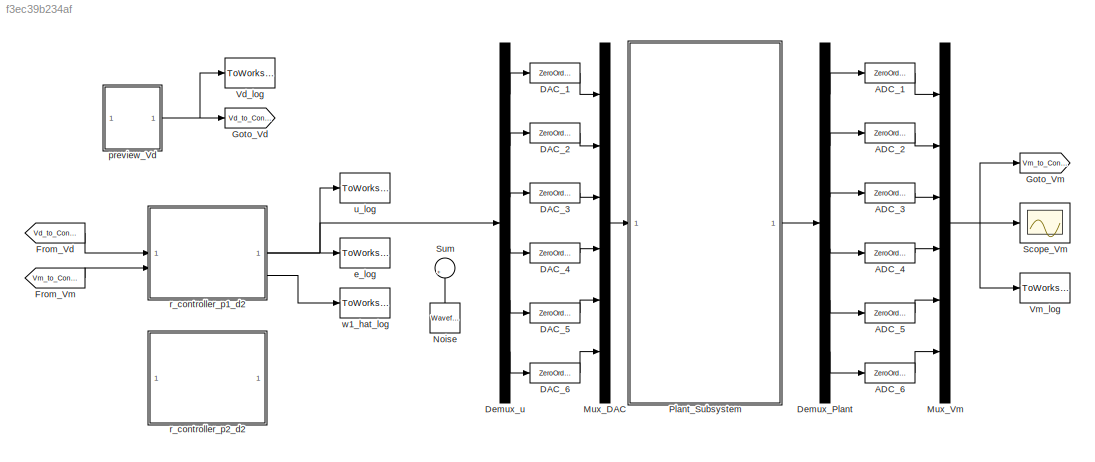
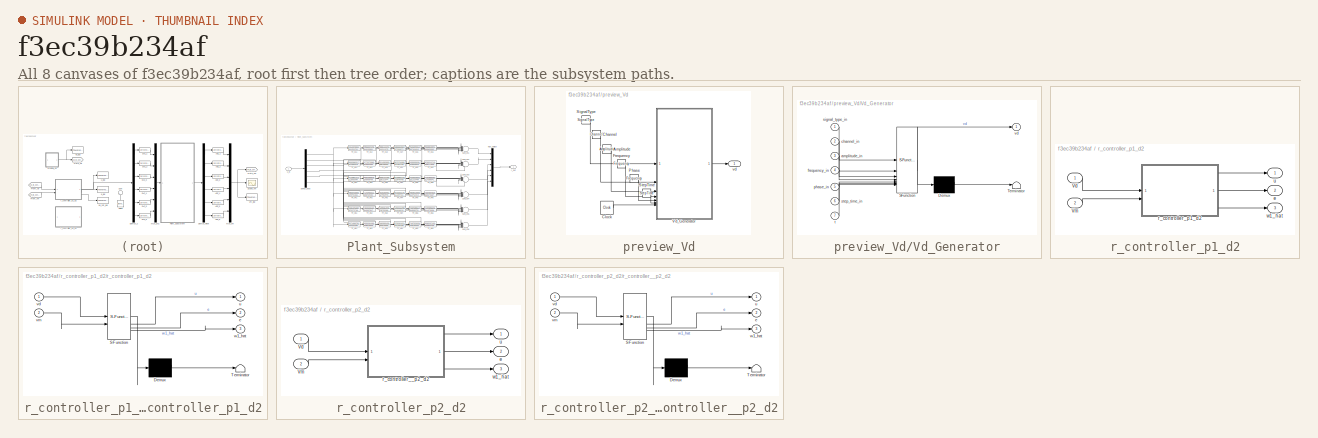
[diagram: thumbnail index - all 8 canvases of the model, root first then tree order]
MODEL slx_f3ec39b234af
KIND model
CONFIG AbsTol = auto
CONFIG EnableMultiTasking = off
CONFIG FixedStep = 1e-5
CONFIG MaxStep = 1e-06
CONFIG MinStep = auto
CONFIG RelTol = 1e-3
CONFIG SampleTimeConstraint = Unconstrained
CONFIG SolverName = ode23tb
CONFIG StartTime = 0.0
CONFIG StopTime = 0.25
BLOCK [ZeroOrderHold] ADC_1
  SampleTime = 1e-05
BLOCK [ZeroOrderHold] ADC_2
  SampleTime = 1e-05
BLOCK [ZeroOrderHold] ADC_3
  SampleTime = 1e-05
BLOCK [ZeroOrderHold] ADC_4
  SampleTime = 1e-05
BLOCK [ZeroOrderHold] ADC_5
  SampleTime = 1e-05
BLOCK [ZeroOrderHold] ADC_6
  SampleTime = 1e-05
BLOCK [ZeroOrderHold] DAC_1
  SampleTime = 1e-05
BLOCK [ZeroOrderHold] DAC_2
  SampleTime = 1e-05
BLOCK [ZeroOrderHold] DAC_3
  SampleTime = 1e-05
BLOCK [ZeroOrderHold] DAC_4
  SampleTime = 1e-05
BLOCK [ZeroOrderHold] DAC_5
  SampleTime = 1e-05
BLOCK [ZeroOrderHold] DAC_6
  SampleTime = 1e-05
BLOCK [Demux] Demux_Plant
  Outputs = 6
BLOCK [Demux] Demux_u
  Outputs = 6
BLOCK [From] From_Vd
  GotoTag = Vd_to_Controller
BLOCK [From] From_Vm
  GotoTag = Vm_to_Controller
BLOCK [Goto] Goto_Vd
  GotoTag = Vd_to_Controller
BLOCK [Goto] Goto_Vm
  GotoTag = Vm_to_Controller
BLOCK [Mux] Mux_DAC
  DisplayOption = bar
  Inputs = 6
BLOCK [Mux] Mux_Vm
  DisplayOption = bar
  Inputs = 6
BLOCK [Reference] Noise  REF=simulink/Sources/Waveform
Generator
  NameLocation = right
  SourceBlock = simulink/Sources/Waveform\nGenerator
  SourceType = WaveformGenerator
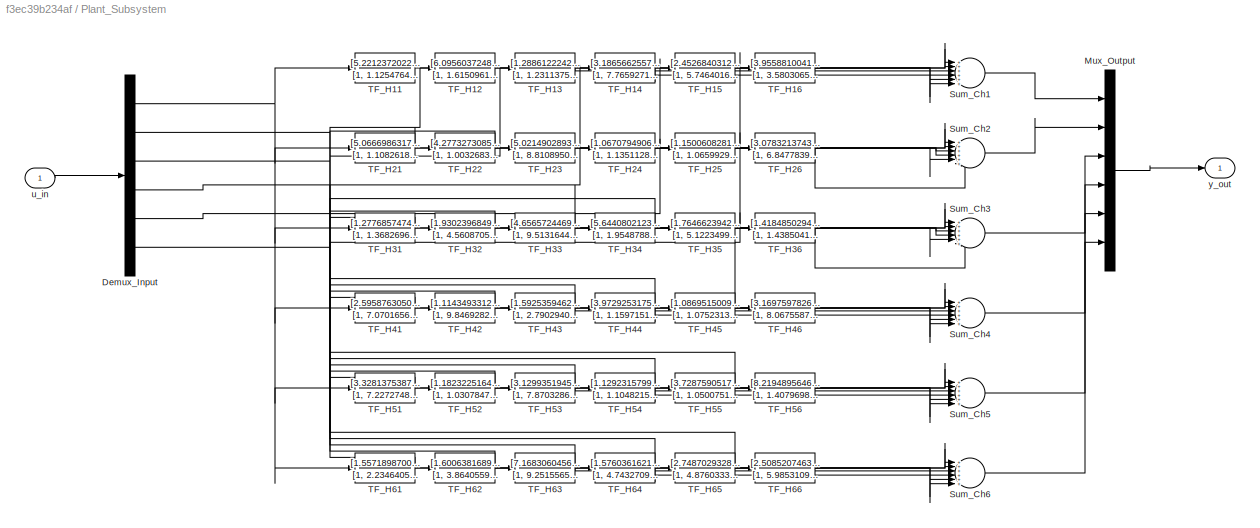
BLOCK [SubSystem] Plant_Subsystem
BLOCK [Demux] Plant_Subsystem/Demux_Input
  Outputs = 6
BLOCK [Mux] Plant_Subsystem/Mux_Output
  DisplayOption = bar
  Inputs = 6
BLOCK [Sum] Plant_Subsystem/Sum_Ch1
  Inputs = ++++++
BLOCK [Sum] Plant_Subsystem/Sum_Ch2
  Inputs = ++++++
BLOCK [Sum] Plant_Subsystem/Sum_Ch3
  Inputs = ++++++
BLOCK [Sum] Plant_Subsystem/Sum_Ch4
  Inputs = ++++++
BLOCK [Sum] Plant_Subsystem/Sum_Ch5
  Inputs = ++++++
BLOCK [Sum] Plant_Subsystem/Sum_Ch6
  Inputs = ++++++
BLOCK [TransferFcn] Plant_Subsystem/TF_H11
  Denominator = [1, 1.125476429798e+04, 2.207970207484e+07]
  Numerator = [5.221237202258e+06]
BLOCK [TransferFcn] Plant_Subsystem/TF_H12
  Denominator = [1, 1.615096196557e+03, 9.571173160946e+06]
  Numerator = [6.095603724823e+04]
BLOCK [TransferFcn] Plant_Subsystem/TF_H13
  Denominator = [1, 1.231137597589e+04, 3.947206038787e+07]
  Numerator = [1.288612224236e+06]
BLOCK [TransferFcn] Plant_Subsystem/TF_H14
  Denominator = [1, 7.765927137710e+03, 9.263818981101e+06]
  Numerator = [3.186566255776e+05]
BLOCK [TransferFcn] Plant_Subsystem/TF_H15
  Denominator = [1, 5.746401647961e+03, 5.999997285542e+06]
  Numerator = [2.452684031253e+05]
BLOCK [TransferFcn] Plant_Subsystem/TF_H16
  Denominator = [1, 3.580306515557e+03, 1.155083131186e+07]
  Numerator = [3.955881004140e+05]
BLOCK [TransferFcn] Plant_Subsystem/TF_H21
  Denominator = [1, 1.108261849372e+03, 1.373615752245e+07]
  Numerator = [5.066698631790e+04]
BLOCK [TransferFcn] Plant_Subsystem/TF_H22
  Denominator = [1, 1.003268373777e+04, 1.517256424974e+07]
  Numerator = [4.277327308593e+06]
BLOCK [TransferFcn] Plant_Subsystem/TF_H23
  Denominator = [1, 8.810895080316e+03, 1.176013147465e+07]
  Numerator = [5.021490289304e+05]
BLOCK [TransferFcn] Plant_Subsystem/TF_H24
  Denominator = [1, 1.135112820448e+04, 1.579872906385e+07]
  Numerator = [1.067079490600e+06]
BLOCK [TransferFcn] Plant_Subsystem/TF_H25
  Denominator = [1, 1.065992916636e+04, 1.476096604860e+07]
  Numerator = [1.150060828107e+06]
BLOCK [TransferFcn] Plant_Subsystem/TF_H26
  Denominator = [1, 6.847783968129e+03, 8.350689199857e+06]
  Numerator = [3.078321374306e+05]
BLOCK [TransferFcn] Plant_Subsystem/TF_H31
  Denominator = [1, 1.368269686933e+04, 3.407241686199e+07]
  Numerator = [1.277685747428e+06]
BLOCK [TransferFcn] Plant_Subsystem/TF_H32
  Denominator = [1, 4.560870597302e+03, 5.880205842512e+06]
  Numerator = [1.930239684968e+05]
BLOCK [TransferFcn] Plant_Subsystem/TF_H33
  Denominator = [1, 9.513164457161e+03, 2.210308479198e+07]
  Numerator = [4.656572446985e+06]
BLOCK [TransferFcn] Plant_Subsystem/TF_H34
  Denominator = [1, 1.954878812118e+03, 9.380728837338e+06]
  Numerator = [5.644080212304e+04]
BLOCK [TransferFcn] Plant_Subsystem/TF_H35
  Denominator = [1, 5.122349981324e+03, 6.659709663387e+06]
  Numerator = [1.764662394212e+05]
BLOCK [TransferFcn] Plant_Subsystem/TF_H36
  Denominator = [1, 1.438504147902e+03, 4.166335044060e+06]
  Numerator = [1.418485029440e+05]
BLOCK [TransferFcn] Plant_Subsystem/TF_H41
  Denominator = [1, 7.070165651413e+03, 1.060240979066e+07]
  Numerator = [2.595876305066e+05]
BLOCK [TransferFcn] Plant_Subsystem/TF_H42
  Denominator = [1, 9.846928206402e+03, 1.433078717084e+07]
  Numerator = [1.114349331223e+06]
BLOCK [TransferFcn] Plant_Subsystem/TF_H43
  Denominator = [1, 2.790294019501e+03, 2.871898227443e+07]
  Numerator = [1.592535946272e+05]
BLOCK [TransferFcn] Plant_Subsystem/TF_H44
  Denominator = [1, 1.159715140811e+04, 1.682154085249e+07]
  Numerator = [3.972925317547e+06]
BLOCK [TransferFcn] Plant_Subsystem/TF_H45
  Denominator = [1, 1.075231371220e+04, 1.409904497821e+07]
  Numerator = [1.086951500933e+06]
BLOCK [TransferFcn] Plant_Subsystem/TF_H46
  Denominator = [1, 8.067558736035e+03, 1.315975400997e+07]
  Numerator = [3.169759782656e+05]
BLOCK [TransferFcn] Plant_Subsystem/TF_H51
  Denominator = [1, 7.227274813518e+03, 8.052571157216e+06]
  Numerator = [3.328137538766e+05]
BLOCK [TransferFcn] Plant_Subsystem/TF_H52
  Denominator = [1, 1.030784744910e+04, 1.554206521303e+07]
  Numerator = [1.182322516481e+06]
BLOCK [TransferFcn] Plant_Subsystem/TF_H53
  Denominator = [1, 7.870328655037e+03, 1.337774667821e+07]
  Numerator = [3.129935194599e+05]
BLOCK [TransferFcn] Plant_Subsystem/TF_H54
  Denominator = [1, 1.104821595243e+04, 1.568676428581e+07]
  Numerator = [1.129231579925e+06]
BLOCK [TransferFcn] Plant_Subsystem/TF_H55
  Denominator = [1, 1.050075182774e+04, 1.449217376803e+07]
  Numerator = [3.728759051745e+06]
BLOCK [TransferFcn] Plant_Subsystem/TF_H56
  Denominator = [1, 1.407969854523e+03, 1.853348985437e+07]
  Numerator = [8.219489564647e+04]
BLOCK [TransferFcn] Plant_Subsystem/TF_H61
  Denominator = [1, 2.234640585923e+04, 6.373749577675e+07]
  Numerator = [1.557189870041e+06]
BLOCK [TransferFcn] Plant_Subsystem/TF_H62
  Denominator = [1, 3.864055922471e+03, 4.849839120469e+06]
  Numerator = [1.600638168987e+05]
BLOCK [TransferFcn] Plant_Subsystem/TF_H63
  Denominator = [1, 9.251556589809e+03, 2.787193801633e+07]
  Numerator = [7.168306045699e+05]
BLOCK [TransferFcn] Plant_Subsystem/TF_H64
  Denominator = [1, 4.743270970318e+03, 6.428360363602e+06]
  Numerator = [1.576036162155e+05]
BLOCK [TransferFcn] Plant_Subsystem/TF_H65
  Denominator = [1, 4.876033357949e+02, 9.309786245813e+06]
  Numerator = [2.748702932822e+04]
BLOCK [TransferFcn] Plant_Subsystem/TF_H66
  Denominator = [1, 5.985310903650e+03, 1.360142788272e+07]
  Numerator = [2.508520746356e+06]
BLOCK [Inport] Plant_Subsystem/u_in
BLOCK [Outport] Plant_Subsystem/y_out
BLOCK [Scope] Scope_Vm
  Floating = off
  NumInputPorts = 1
  ScopeSpecificationString = Simulink.scopes.TimeScopeBlockCfg('CurrentConfiguration', extmgr.ConfigurationSet(extmgr.Configuration('Core','General UI',true),extmgr.Configuration('Core','Source UI',true),extmgr.Configuration('Sources','WiredSimulink',true,'DataLoggingVariableName','ScopeData1'),extmgr.Configuration('Visuals','Time Domain',true,'SerializedDisplays',{struct('MinYLimReal','-0.28274','MaxYLimReal','0.28463','YLab...<+1539ch>
BLOCK [Sum] Sum
  Inputs = |++
BLOCK [ToWorkspace] Vd_log
  MaxDataPoints = inf
  SampleTime = 1e-5
  Save2DSignal = 2-D array (concatenate along first dimension)
  VariableName = Vd
BLOCK [ToWorkspace] Vm_log
  MaxDataPoints = inf
  SampleTime = 1e-5
  Save2DSignal = 2-D array (concatenate along first dimension)
  VariableName = Vm
BLOCK [ToWorkspace] e_log
  MaxDataPoints = inf
  SampleTime = 1e-5
  Save2DSignal = 2-D array (concatenate along first dimension)
  VariableName = e
BLOCK [SubSystem] preview_Vd
BLOCK [Constant] preview_Vd/Amplitude
  Value = Amplitude
BLOCK [Constant] preview_Vd/Channel
  Value = Channel
BLOCK [Clock] preview_Vd/Clock
  DisplayTime = on
BLOCK [Constant] preview_Vd/Frequency
  Value = Frequency
BLOCK [Constant] preview_Vd/Phase
  Value = Frequency
BLOCK [Constant] preview_Vd/SignalType
  Value = SignalType
BLOCK [Constant] preview_Vd/StepTime
  Value = StepTime
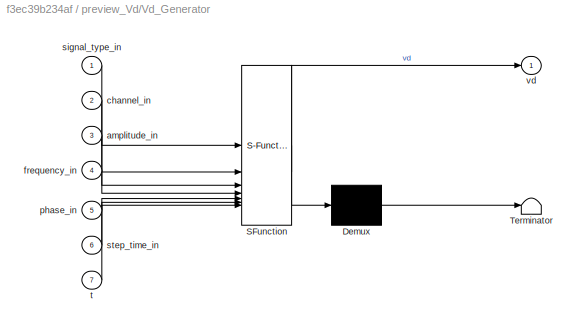
BLOCK [SubSystem] preview_Vd/Vd_Generator
  ErrorFcn = Stateflow.Translate.translate
  PermitHierarchicalResolution = ExplicitOnly
  SFBlockType = MATLAB Function
  TreatAsAtomicUnit = on
BLOCK [Demux] preview_Vd/Vd_Generator/ Demux 
  Outputs = 1
BLOCK [S-Function] preview_Vd/Vd_Generator/ SFunction 
  EnableBusSupport = on
  FunctionName = sf_sfun
  PortCounts = [7 2]
  SFcnIsStateOwnerBlock = off
  SFunctionDeploymentMode = off
  Tag = Stateflow S-Function 2
BLOCK [Terminator] preview_Vd/Vd_Generator/ Terminator 
BLOCK [Inport] preview_Vd/Vd_Generator/amplitude_in
  Port = 3
BLOCK [Inport] preview_Vd/Vd_Generator/channel_in
  Port = 2
BLOCK [Inport] preview_Vd/Vd_Generator/frequency_in
  Port = 4
BLOCK [Inport] preview_Vd/Vd_Generator/phase_in
  Port = 5
BLOCK [Inport] preview_Vd/Vd_Generator/signal_type_in
BLOCK [Inport] preview_Vd/Vd_Generator/step_time_in
  Port = 6
BLOCK [Inport] preview_Vd/Vd_Generator/t
  Port = 7
BLOCK [Outport] preview_Vd/Vd_Generator/vd
BLOCK [Outport] preview_Vd/vd
BLOCK [SubSystem] r_controller_p1_d2
BLOCK [Inport] r_controller_p1_d2/Vd
BLOCK [Inport] r_controller_p1_d2/Vm
  Port = 2
BLOCK [Outport] r_controller_p1_d2/e
  Port = 2
BLOCK [SubSystem] r_controller_p1_d2/r_controller_p1_d2
  ErrorFcn = Stateflow.Translate.translate
  PermitHierarchicalResolution = ExplicitOnly
  SFBlockType = MATLAB Function
  TreatAsAtomicUnit = on
BLOCK [Demux] r_controller_p1_d2/r_controller_p1_d2/ Demux 
  Outputs = 1
BLOCK [S-Function] r_controller_p1_d2/r_controller_p1_d2/ SFunction 
  EnableBusSupport = on
  FunctionName = sf_sfun
  PortCounts = [2 4]
  SFcnIsStateOwnerBlock = off
  SFunctionDeploymentMode = off
  Tag = Stateflow S-Function 1
BLOCK [Terminator] r_controller_p1_d2/r_controller_p1_d2/ Terminator 
BLOCK [Outport] r_controller_p1_d2/r_controller_p1_d2/e
  Port = 2
BLOCK [Outport] r_controller_p1_d2/r_controller_p1_d2/u
BLOCK [Inport] r_controller_p1_d2/r_controller_p1_d2/vd
BLOCK [Inport] r_controller_p1_d2/r_controller_p1_d2/vm
  Port = 2
BLOCK [Outport] r_controller_p1_d2/r_controller_p1_d2/w1_hat
  Port = 3
BLOCK [Outport] r_controller_p1_d2/u
BLOCK [Outport] r_controller_p1_d2/w1_hat
  Port = 3
BLOCK [SubSystem] r_controller_p2_d2
BLOCK [Inport] r_controller_p2_d2/Vd
BLOCK [Inport] r_controller_p2_d2/Vm
  Port = 2
BLOCK [Outport] r_controller_p2_d2/e
  Port = 2
BLOCK [SubSystem] r_controller_p2_d2/r_controller__p2_d2
  ErrorFcn = Stateflow.Translate.translate
  PermitHierarchicalResolution = ExplicitOnly
  SFBlockType = MATLAB Function
  TreatAsAtomicUnit = on
BLOCK [Demux] r_controller_p2_d2/r_controller__p2_d2/ Demux 
  Outputs = 1
BLOCK [S-Function] r_controller_p2_d2/r_controller__p2_d2/ SFunction 
  EnableBusSupport = on
  FunctionName = sf_sfun
  PortCounts = [2 4]
  SFcnIsStateOwnerBlock = off
  SFunctionDeploymentMode = off
  Tag = Stateflow S-Function 3
BLOCK [Terminator] r_controller_p2_d2/r_controller__p2_d2/ Terminator 
BLOCK [Outport] r_controller_p2_d2/r_controller__p2_d2/e
  Port = 2
BLOCK [Outport] r_controller_p2_d2/r_controller__p2_d2/u
BLOCK [Inport] r_controller_p2_d2/r_controller__p2_d2/vd
BLOCK [Inport] r_controller_p2_d2/r_controller__p2_d2/vm
  Port = 2
BLOCK [Outport] r_controller_p2_d2/r_controller__p2_d2/w1_hat
  Port = 3
BLOCK [Outport] r_controller_p2_d2/u
BLOCK [Outport] r_controller_p2_d2/w1_hat
  Port = 3
BLOCK [ToWorkspace] u_log
  MaxDataPoints = inf
  SampleTime = 1e-5
  Save2DSignal = 2-D array (concatenate along first dimension)
  VariableName = u
BLOCK [ToWorkspace] w1_hat_log
  MaxDataPoints = inf
  SampleTime = 1e-5
  Save2DSignal = 2-D array (concatenate along first dimension)
  VariableName = w1_hat
LINE ADC_1:1 -> Mux_Vm:1
LINE ADC_2:1 -> Mux_Vm:2
LINE ADC_3:1 -> Mux_Vm:3
LINE ADC_4:1 -> Mux_Vm:4
LINE ADC_5:1 -> Mux_Vm:5
LINE ADC_6:1 -> Mux_Vm:6
LINE DAC_1:1 -> Mux_DAC:1
LINE DAC_2:1 -> Mux_DAC:2
LINE DAC_3:1 -> Mux_DAC:3
LINE DAC_4:1 -> Mux_DAC:4
LINE DAC_5:1 -> Mux_DAC:5
LINE DAC_6:1 -> Mux_DAC:6
LINE Demux_Plant:1 -> ADC_1:1
LINE Demux_Plant:2 -> ADC_2:1
LINE Demux_Plant:3 -> ADC_3:1
LINE Demux_Plant:4 -> ADC_4:1
LINE Demux_Plant:5 -> ADC_5:1
LINE Demux_Plant:6 -> ADC_6:1
LINE Demux_u:1 -> DAC_1:1
LINE Demux_u:2 -> DAC_2:1
LINE Demux_u:3 -> DAC_3:1
LINE Demux_u:4 -> DAC_4:1
LINE Demux_u:5 -> DAC_5:1
LINE Demux_u:6 -> DAC_6:1
LINE From_Vd:1 -> r_controller_p1_d2:1
LINE From_Vm:1 -> r_controller_p1_d2:2
LINE Mux_DAC:1 -> Plant_Subsystem:1
NET Mux_Vm:1 -> Goto_Vm:1, Scope_Vm:1, Vm_log:1
LINE Noise:1 -> Sum:2
NET Plant_Subsystem/Demux_Input:1 -> Plant_Subsystem/TF_H11:1, Plant_Subsystem/TF_H21:1, Plant_Subsystem/TF_H31:1, Plant_Subsystem/TF_H41:1, Plant_Subsystem/TF_H51:1, Plant_Subsystem/TF_H61:1
NET Plant_Subsystem/Demux_Input:2 -> Plant_Subsystem/TF_H12:1, Plant_Subsystem/TF_H22:1, Plant_Subsystem/TF_H32:1, Plant_Subsystem/TF_H42:1, Plant_Subsystem/TF_H52:1, Plant_Subsystem/TF_H62:1
NET Plant_Subsystem/Demux_Input:3 -> Plant_Subsystem/TF_H13:1, Plant_Subsystem/TF_H23:1, Plant_Subsystem/TF_H33:1, Plant_Subsystem/TF_H43:1, Plant_Subsystem/TF_H53:1, Plant_Subsystem/TF_H63:1
NET Plant_Subsystem/Demux_Input:4 -> Plant_Subsystem/TF_H14:1, Plant_Subsystem/TF_H24:1, Plant_Subsystem/TF_H34:1, Plant_Subsystem/TF_H44:1, Plant_Subsystem/TF_H54:1, Plant_Subsystem/TF_H64:1
NET Plant_Subsystem/Demux_Input:5 -> Plant_Subsystem/TF_H15:1, Plant_Subsystem/TF_H25:1, Plant_Subsystem/TF_H35:1, Plant_Subsystem/TF_H45:1, Plant_Subsystem/TF_H55:1, Plant_Subsystem/TF_H65:1
NET Plant_Subsystem/Demux_Input:6 -> Plant_Subsystem/TF_H16:1, Plant_Subsystem/TF_H26:1, Plant_Subsystem/TF_H36:1, Plant_Subsystem/TF_H46:1, Plant_Subsystem/TF_H56:1, Plant_Subsystem/TF_H66:1
LINE Plant_Subsystem/Mux_Output:1 -> Plant_Subsystem/y_out:1
LINE Plant_Subsystem/Sum_Ch1:1 -> Plant_Subsystem/Mux_Output:1
LINE Plant_Subsystem/Sum_Ch2:1 -> Plant_Subsystem/Mux_Output:2
LINE Plant_Subsystem/Sum_Ch3:1 -> Plant_Subsystem/Mux_Output:3
LINE Plant_Subsystem/Sum_Ch4:1 -> Plant_Subsystem/Mux_Output:4
LINE Plant_Subsystem/Sum_Ch5:1 -> Plant_Subsystem/Mux_Output:5
LINE Plant_Subsystem/Sum_Ch6:1 -> Plant_Subsystem/Mux_Output:6
LINE Plant_Subsystem/TF_H11:1 -> Plant_Subsystem/Sum_Ch1:1
LINE Plant_Subsystem/TF_H12:1 -> Plant_Subsystem/Sum_Ch1:2
LINE Plant_Subsystem/TF_H13:1 -> Plant_Subsystem/Sum_Ch1:3
LINE Plant_Subsystem/TF_H14:1 -> Plant_Subsystem/Sum_Ch1:4
LINE Plant_Subsystem/TF_H15:1 -> Plant_Subsystem/Sum_Ch1:5
LINE Plant_Subsystem/TF_H16:1 -> Plant_Subsystem/Sum_Ch1:6
LINE Plant_Subsystem/TF_H21:1 -> Plant_Subsystem/Sum_Ch2:1
LINE Plant_Subsystem/TF_H22:1 -> Plant_Subsystem/Sum_Ch2:2
LINE Plant_Subsystem/TF_H23:1 -> Plant_Subsystem/Sum_Ch2:3
LINE Plant_Subsystem/TF_H24:1 -> Plant_Subsystem/Sum_Ch2:4
LINE Plant_Subsystem/TF_H25:1 -> Plant_Subsystem/Sum_Ch2:5
LINE Plant_Subsystem/TF_H26:1 -> Plant_Subsystem/Sum_Ch2:6
LINE Plant_Subsystem/TF_H31:1 -> Plant_Subsystem/Sum_Ch3:1
LINE Plant_Subsystem/TF_H32:1 -> Plant_Subsystem/Sum_Ch3:2
LINE Plant_Subsystem/TF_H33:1 -> Plant_Subsystem/Sum_Ch3:3
LINE Plant_Subsystem/TF_H34:1 -> Plant_Subsystem/Sum_Ch3:4
LINE Plant_Subsystem/TF_H35:1 -> Plant_Subsystem/Sum_Ch3:5
LINE Plant_Subsystem/TF_H36:1 -> Plant_Subsystem/Sum_Ch3:6
LINE Plant_Subsystem/TF_H41:1 -> Plant_Subsystem/Sum_Ch4:1
LINE Plant_Subsystem/TF_H42:1 -> Plant_Subsystem/Sum_Ch4:2
LINE Plant_Subsystem/TF_H43:1 -> Plant_Subsystem/Sum_Ch4:3
LINE Plant_Subsystem/TF_H44:1 -> Plant_Subsystem/Sum_Ch4:4
LINE Plant_Subsystem/TF_H45:1 -> Plant_Subsystem/Sum_Ch4:5
LINE Plant_Subsystem/TF_H46:1 -> Plant_Subsystem/Sum_Ch4:6
LINE Plant_Subsystem/TF_H51:1 -> Plant_Subsystem/Sum_Ch5:1
LINE Plant_Subsystem/TF_H52:1 -> Plant_Subsystem/Sum_Ch5:2
LINE Plant_Subsystem/TF_H53:1 -> Plant_Subsystem/Sum_Ch5:3
LINE Plant_Subsystem/TF_H54:1 -> Plant_Subsystem/Sum_Ch5:4
LINE Plant_Subsystem/TF_H55:1 -> Plant_Subsystem/Sum_Ch5:5
LINE Plant_Subsystem/TF_H56:1 -> Plant_Subsystem/Sum_Ch5:6
LINE Plant_Subsystem/TF_H61:1 -> Plant_Subsystem/Sum_Ch6:1
LINE Plant_Subsystem/TF_H62:1 -> Plant_Subsystem/Sum_Ch6:2
LINE Plant_Subsystem/TF_H63:1 -> Plant_Subsystem/Sum_Ch6:3
LINE Plant_Subsystem/TF_H64:1 -> Plant_Subsystem/Sum_Ch6:4
LINE Plant_Subsystem/TF_H65:1 -> Plant_Subsystem/Sum_Ch6:5
LINE Plant_Subsystem/TF_H66:1 -> Plant_Subsystem/Sum_Ch6:6
LINE Plant_Subsystem/u_in:1 -> Plant_Subsystem/Demux_Input:1
LINE Plant_Subsystem:1 -> Demux_Plant:1
LINE preview_Vd/Amplitude:1 -> preview_Vd/Vd_Generator:3
LINE preview_Vd/Channel:1 -> preview_Vd/Vd_Generator:2
LINE preview_Vd/Clock:1 -> preview_Vd/Vd_Generator:7
LINE preview_Vd/Frequency:1 -> preview_Vd/Vd_Generator:4
LINE preview_Vd/Phase:1 -> preview_Vd/Vd_Generator:5
LINE preview_Vd/SignalType:1 -> preview_Vd/Vd_Generator:1
LINE preview_Vd/StepTime:1 -> preview_Vd/Vd_Generator:6
LINE preview_Vd/Vd_Generator:1 -> preview_Vd/vd:1
NET preview_Vd:1 -> Goto_Vd:1, Vd_log:1
LINE r_controller_p1_d2/Vd:1 -> r_controller_p1_d2/r_controller_p1_d2:1
LINE r_controller_p1_d2/Vm:1 -> r_controller_p1_d2/r_controller_p1_d2:2
LINE r_controller_p1_d2/r_controller_p1_d2:1 -> r_controller_p1_d2/u:1
LINE r_controller_p1_d2/r_controller_p1_d2:2 -> r_controller_p1_d2/e:1
LINE r_controller_p1_d2/r_controller_p1_d2:3 -> r_controller_p1_d2/w1_hat:1
NET r_controller_p1_d2:1 -> Demux_u:1, u_log:1
LINE r_controller_p1_d2:2 -> e_log:1
LINE r_controller_p1_d2:3 -> w1_hat_log:1
LINE r_controller_p2_d2/Vd:1 -> r_controller_p2_d2/r_controller__p2_d2:1
LINE r_controller_p2_d2/Vm:1 -> r_controller_p2_d2/r_controller__p2_d2:2
LINE r_controller_p2_d2/r_controller__p2_d2:1 -> r_controller_p2_d2/u:1
LINE r_controller_p2_d2/r_controller__p2_d2:2 -> r_controller_p2_d2/e:1
LINE r_controller_p2_d2/r_controller__p2_d2:3 -> r_controller_p2_d2/w1_hat:1
note: NET lines group one-source signal fan-out (src -> all destinations, sorted); 1:1 wires keep LINE
CHART r_controller_p1_d2/r_controller_p1_d2 states=1 transitions=1
  STATE_LABEL 'eML_blk_kernel()'
  STATE_LABEL 'SCRIPT:\nfunction [u, e, w1_hat] = r_controller_function_p1_d2(vd, vm)\n    % R Controller with d=2 Preview (Flux_Control_R_newmodel.pdf Page 1)\n\n    k_o = 5.6695e-4;              % k_o from H(z^-1)\n    b = 0.9782;                   % b from H(z^-1)\n    a1 = 1.934848;                % a1\n    a2 = -0.935970;               % a2\n\n    B = [0.2365  -0.0064  -0.0327  -0.0344  -0.0408  -0.0343;\n        -0....<+3608ch>'
CHART preview_Vd/Vd_Generator states=1 transitions=1
  STATE_LABEL 'eML_blk_kernel()'
  STATE_LABEL 'SCRIPT:\nfunction vd = fcn(signal_type_in, channel_in, amplitude_in, frequency_in, phase_in, step_time_in, t)\n\n    % 固定參數\n    Ts = 1e-5;  \n\n    % Preview 機制\n    t_future = t + Ts * 3;\n\n    % 初始化輸出\n    vd = zeros(6, 1);\n\n    % 確保 channel 在有效範圍內\n    channel = round(channel_in);\n    if channel < 1 || channel > 6\n        channel = 1;\n    end\n\n    % 根據 signal_type 生成信號\n    if signal_type_in == 1\n       ...<+275ch>'
CHART r_controller_p2_d2/r_controller__p2_d2 states=1 transitions=1
  STATE_LABEL 'eML_blk_kernel()'
  STATE_LABEL 'SCRIPT:\nfunction [u, e, w1_hat] = r_controller_function_p2_d2(vd, vm)\n    % R Controller with d=2 Preview (Flux_Control_R_newmodel.pdf Page 2)\n\n    k_o = 5.6695e-4;              % k_o from H(z^-1)\n    b = 0.9782;                   % b from H(z^-1)\n    a1 = 1.934848;                % a1\n    a2 = -0.935970;               % a2\n\n    B = [0.2365  -0.0064  -0.0327  -0.0344  -0.0408  -0.0343;\n        -0....<+3608ch>'
CHART  states=0 transitions=0
CHART  states=0 transitions=0
CHART  states=0 transitions=0
